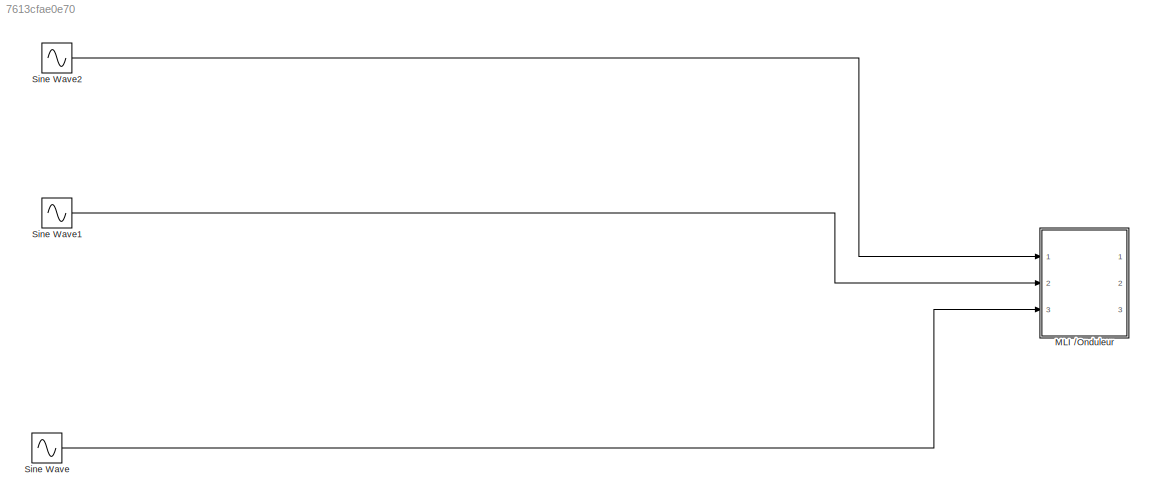
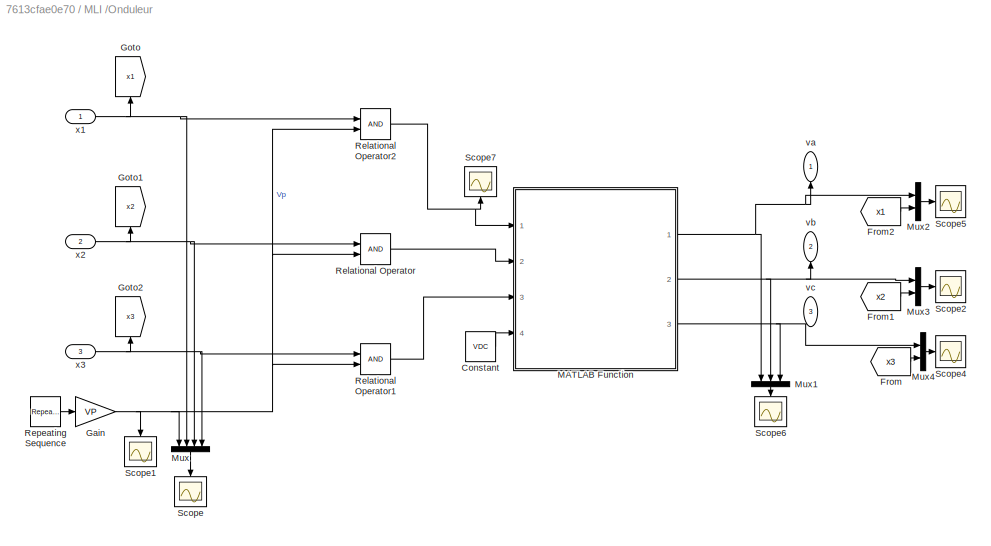
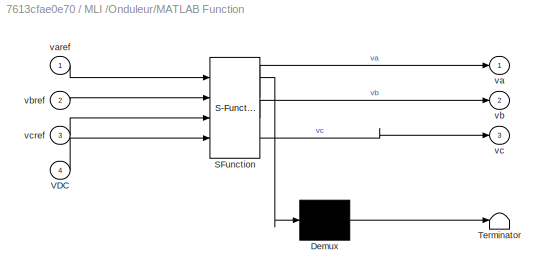
MODEL slx_7613cfae0e70
KIND model
CONFIG AbsTol = auto
CONFIG EnableMultiTasking = off
CONFIG FixedStep = 1e-5
CONFIG MaxStep = auto
CONFIG MinStep = auto
CONFIG RelTol = 1e-3
CONFIG SampleTimeConstraint = Unconstrained
CONFIG SolverName = ode1
CONFIG StartTime = 0.0
CONFIG StopTime = 10.0
BLOCK [SubSystem] MLI //Onduleur
  Ports = [3, 3]
  RequestExecContextInheritance = off
BLOCK [Constant] MLI //Onduleur/Constant
  Value = VDC
BLOCK [From] MLI //Onduleur/From
  GotoTag = x3
BLOCK [From] MLI //Onduleur/From1
  GotoTag = x2
BLOCK [From] MLI //Onduleur/From2
  GotoTag = x1
BLOCK [Gain] MLI //Onduleur/Gain
  Gain = VP
BLOCK [Goto] MLI //Onduleur/Goto
  GotoTag = x1
  NameLocation = right
BLOCK [Goto] MLI //Onduleur/Goto1
  GotoTag = x2
  NameLocation = right
BLOCK [Goto] MLI //Onduleur/Goto2
  GotoTag = x3
  NameLocation = right
BLOCK [SubSystem] MLI //Onduleur/MATLAB Function
  ErrorFcn = Stateflow.Translate.translate
  PermitHierarchicalResolution = ExplicitOnly
  Ports = [4, 3]
  RequestExecContextInheritance = off
  SFBlockType = MATLAB Function
  TreatAsAtomicUnit = on
BLOCK [Demux] MLI //Onduleur/MATLAB Function/ Demux 
  Outputs = 1
  Ports = [1, 1]
BLOCK [S-Function] MLI //Onduleur/MATLAB Function/ SFunction 
  EnableBusSupport = on
  FunctionName = sf_sfun
  PortCounts = [4 4]
  Ports = [4, 4]
  SFcnIsStateOwnerBlock = off
  SFunctionDeploymentMode = off
  Tag = Stateflow S-Function 4
BLOCK [Terminator] MLI //Onduleur/MATLAB Function/ Terminator 
BLOCK [Inport] MLI //Onduleur/MATLAB Function/VDC
  Port = 4
BLOCK [Outport] MLI //Onduleur/MATLAB Function/va
BLOCK [Inport] MLI //Onduleur/MATLAB Function/varef
BLOCK [Outport] MLI //Onduleur/MATLAB Function/vb
  Port = 2
BLOCK [Inport] MLI //Onduleur/MATLAB Function/vbref
  Port = 2
BLOCK [Outport] MLI //Onduleur/MATLAB Function/vc
  Port = 3
BLOCK [Inport] MLI //Onduleur/MATLAB Function/vcref
  Port = 3
BLOCK [Mux] MLI //Onduleur/Mux
  DisplayOption = bar
  NameLocation = left
  Ports = [4, 1]
BLOCK [Mux] MLI //Onduleur/Mux1
  DisplayOption = bar
  Inputs = 3
  NameLocation = left
  Ports = [3, 1]
BLOCK [Mux] MLI //Onduleur/Mux2
  DisplayOption = bar
  Inputs = 2
  Ports = [2, 1]
BLOCK [Mux] MLI //Onduleur/Mux3
  DisplayOption = bar
  Inputs = 2
  Ports = [2, 1]
BLOCK [Mux] MLI //Onduleur/Mux4
  DisplayOption = bar
  Inputs = 2
  Ports = [2, 1]
BLOCK [RelationalOperator] MLI //Onduleur/Relational Operator
  InputSameDT = off
  OutDataTypeStr = boolean
  Ports = [2, 1]
  RndMeth = Simplest
BLOCK [RelationalOperator] MLI //Onduleur/Relational Operator1
  InputSameDT = off
  OutDataTypeStr = boolean
  Ports = [2, 1]
  RndMeth = Simplest
BLOCK [RelationalOperator] MLI //Onduleur/Relational Operator2
  InputSameDT = off
  OutDataTypeStr = boolean
  Ports = [2, 1]
  RndMeth = Simplest
BLOCK [Reference] MLI //Onduleur/Repeating Sequence  REF=simulink/Sources/Repeating
Sequence
  Ports = [0, 1]
  SourceBlock = simulink/Sources/Repeating\nSequence
  SourceProductBaseCode = SL
  SourceType = Repeating table
BLOCK [Scope] MLI //Onduleur/Scope
  Floating = off
  NameLocation = left
  NumInputPorts = 1
  Ports = [1]
  ScopeSpecificationString = Simulink.scopes.TimeScopeBlockCfg('CurrentConfiguration', extmgr.ConfigurationSet(extmgr.Configuration('Core','General UI',true),extmgr.Configuration('Core','Source UI',true),extmgr.Configuration('Sources','WiredSimulink',true),extmgr.Configuration('Visuals','Time Domain',true,'SerializedDisplays',{struct('MinYLimReal','-646.36828','MaxYLimReal','629.39991','YLabelReal','','MinYLimMag',' 0.00000',...<+1825ch>
BLOCK [Scope] MLI //Onduleur/Scope1
  Floating = off
  NameLocation = left
  NumInputPorts = 1
  Ports = [1]
  ScopeSpecificationString = Simulink.scopes.TimeScopeBlockCfg('CurrentConfiguration', extmgr.ConfigurationSet(extmgr.Configuration('Core','General UI',true),extmgr.Configuration('Core','Source UI',true),extmgr.Configuration('Sources','WiredSimulink',true,'DataLoggingVariableName','ScopeData1'),extmgr.Configuration('Visuals','Time Domain',true,'SerializedDisplays',{struct('MinYLimReal','-0.01549','MaxYLimReal','1.125','YLabel...<+1719ch>
BLOCK [Scope] MLI //Onduleur/Scope2
  Floating = off
  NumInputPorts = 1
  Ports = [1]
  ScopeSpecificationString = Simulink.scopes.TimeScopeBlockCfg('CurrentConfiguration', extmgr.ConfigurationSet(extmgr.Configuration('Core','General UI',true),extmgr.Configuration('Core','Source UI',true),extmgr.Configuration('Sources','WiredSimulink',true,'DataLoggingVariableName','ScopeData1'),extmgr.Configuration('Visuals','Time Domain',true,'SerializedDisplays',{struct('MinYLimReal','-143159.1943','MaxYLimReal','88901.4589...<+1485ch>
BLOCK [Scope] MLI //Onduleur/Scope4
  Floating = off
  NumInputPorts = 1
  Ports = [1]
  ScopeSpecificationString = Simulink.scopes.TimeScopeBlockCfg('CurrentConfiguration', extmgr.ConfigurationSet(extmgr.Configuration('Core','General UI',true),extmgr.Configuration('Core','Source UI',true),extmgr.Configuration('Sources','WiredSimulink',true,'DataLoggingVariableName','ScopeData2'),extmgr.Configuration('Visuals','Time Domain',true,'SerializedDisplays',{struct('MinYLimReal','-295.28231','MaxYLimReal','247.86502','...<+1472ch>
BLOCK [Scope] MLI //Onduleur/Scope5
  Floating = off
  NumInputPorts = 1
  Ports = [1]
  ScopeSpecificationString = Simulink.scopes.TimeScopeBlockCfg('CurrentConfiguration', extmgr.ConfigurationSet(extmgr.Configuration('Core','General UI',true),extmgr.Configuration('Core','Source UI',true),extmgr.Configuration('Sources','WiredSimulink',true),extmgr.Configuration('Visuals','Time Domain',true,'SerializedDisplays',{struct('MinYLimReal','-439.97662','MaxYLimReal','445.10076','YLabelReal','','MinYLimMag',' 0.00000',...<+1684ch>
BLOCK [Scope] MLI //Onduleur/Scope6
  Floating = off
  NameLocation = left
  NumInputPorts = 1
  Ports = [1]
  ScopeSpecificationString = Simulink.scopes.TimeScopeBlockCfg('CurrentConfiguration', extmgr.ConfigurationSet(extmgr.Configuration('Core','General UI',true),extmgr.Configuration('Core','Source UI',true),extmgr.Configuration('Sources','WiredSimulink',true,'DataLoggingVariableName','ScopeData3'),extmgr.Configuration('Visuals','Time Domain',true,'SerializedDisplays',{struct('MinYLimReal','-472.35681','MaxYLimReal','453.96143','...<+1504ch>
BLOCK [Scope] MLI //Onduleur/Scope7
  Floating = off
  NameLocation = right
  NumInputPorts = 1
  Ports = [1]
  ScopeSpecificationString = Simulink.scopes.TimeScopeBlockCfg('CurrentConfiguration', extmgr.ConfigurationSet(extmgr.Configuration('Core','General UI',true),extmgr.Configuration('Core','Source UI',true),extmgr.Configuration('Sources','WiredSimulink',true,'DataLoggingVariableName','ScopeData2'),extmgr.Configuration('Visuals','Time Domain',true,'SerializedDisplays',{struct('MinYLimReal','-0.125','MaxYLimReal','1.125','YLabelRe...<+1467ch>
BLOCK [Outport] MLI //Onduleur/va
  IconDisplay = Signal name
  NameLocation = right
BLOCK [Outport] MLI //Onduleur/vb
  IconDisplay = Signal name
  NameLocation = right
  Port = 2
BLOCK [Outport] MLI //Onduleur/vc
  IconDisplay = Signal name
  NameLocation = right
  Port = 3
BLOCK [Inport] MLI //Onduleur/x1
  IconDisplay = Signal name
BLOCK [Inport] MLI //Onduleur/x2
  IconDisplay = Signal name
  Port = 2
BLOCK [Inport] MLI //Onduleur/x3
  IconDisplay = Signal name
  Port = 3
BLOCK [Sin] Sine Wave
  Amplitude = 220*sqrt(2)
  Frequency = 2*pi*50
  Phase = -4*pi/3
  Ports = [0, 1]
  SampleTime = 0
BLOCK [Sin] Sine Wave1
  Amplitude = 220*sqrt(2)
  Frequency = 2*pi*50
  Phase = -2*pi/3
  Ports = [0, 1]
  SampleTime = 0
BLOCK [Sin] Sine Wave2
  Amplitude = 220*sqrt(2)
  Frequency = 2*pi*50
  Ports = [0, 1]
  SampleTime = 0
LINE MLI //Onduleur/Constant:1 -> MLI //Onduleur/MATLAB Function:4
LINE MLI //Onduleur/From1:1 -> MLI //Onduleur/Mux3:2
LINE MLI //Onduleur/From2:1 -> MLI //Onduleur/Mux2:2
LINE MLI //Onduleur/From:1 -> MLI //Onduleur/Mux4:2
NET MLI //Onduleur/Gain:1 -> MLI //Onduleur/Mux:1, MLI //Onduleur/Relational Operator1:2, MLI //Onduleur/Relational Operator2:2, MLI //Onduleur/Relational Operator:2, MLI //Onduleur/Scope1:1
NET MLI //Onduleur/MATLAB Function:1 -> MLI //Onduleur/Mux1:1, MLI //Onduleur/Mux2:1, MLI //Onduleur/va:1
NET MLI //Onduleur/MATLAB Function:2 -> MLI //Onduleur/Mux1:2, MLI //Onduleur/Mux3:1, MLI //Onduleur/vb:1
NET MLI //Onduleur/MATLAB Function:3 -> MLI //Onduleur/Mux1:3, MLI //Onduleur/Mux4:1, MLI //Onduleur/vc:1
LINE MLI //Onduleur/Mux1:1 -> MLI //Onduleur/Scope6:1
LINE MLI //Onduleur/Mux2:1 -> MLI //Onduleur/Scope5:1
LINE MLI //Onduleur/Mux3:1 -> MLI //Onduleur/Scope2:1
LINE MLI //Onduleur/Mux4:1 -> MLI //Onduleur/Scope4:1
LINE MLI //Onduleur/Mux:1 -> MLI //Onduleur/Scope:1
LINE MLI //Onduleur/Relational Operator1:1 -> MLI //Onduleur/MATLAB Function:3
NET MLI //Onduleur/Relational Operator2:1 -> MLI //Onduleur/MATLAB Function:1, MLI //Onduleur/Scope7:1
LINE MLI //Onduleur/Relational Operator:1 -> MLI //Onduleur/MATLAB Function:2
LINE MLI //Onduleur/Repeating Sequence:1 -> MLI //Onduleur/Gain:1
NET MLI //Onduleur/x1:1 -> MLI //Onduleur/Goto:1, MLI //Onduleur/Mux:2, MLI //Onduleur/Relational Operator2:1
NET MLI //Onduleur/x2:1 -> MLI //Onduleur/Goto1:1, MLI //Onduleur/Mux:3, MLI //Onduleur/Relational Operator:1
NET MLI //Onduleur/x3:1 -> MLI //Onduleur/Goto2:1, MLI //Onduleur/Mux:4, MLI //Onduleur/Relational Operator1:1
LINE Sine Wave1:1 -> MLI //Onduleur:2
LINE Sine Wave2:1 -> MLI //Onduleur:1
LINE Sine Wave:1 -> MLI //Onduleur:3
note: NET lines group one-source signal fan-out (src -> all destinations, sorted); 1:1 wires keep LINE
CHART MLI //Onduleur/MATLAB Function states=1 transitions=1
  STATE_LABEL 'eML_blk_kernel()'
  STATE_LABEL 'SCRIPT:\nfunction [va,vb,vc]= OnduleurOut(varef,vbref,vcref,VDC)\nvaref=double(varef);\nvbref=double(vbref);\nvcref=double(vcref);\nva=(2*varef-vbref-vcref)*(VDC/3);\nvb=(2*vbref-varef-vcref)*(VDC/3);\nvc=(2*vcref-vbref-varef)*(VDC/3);\n'
CHART  states=0 transitions=0
